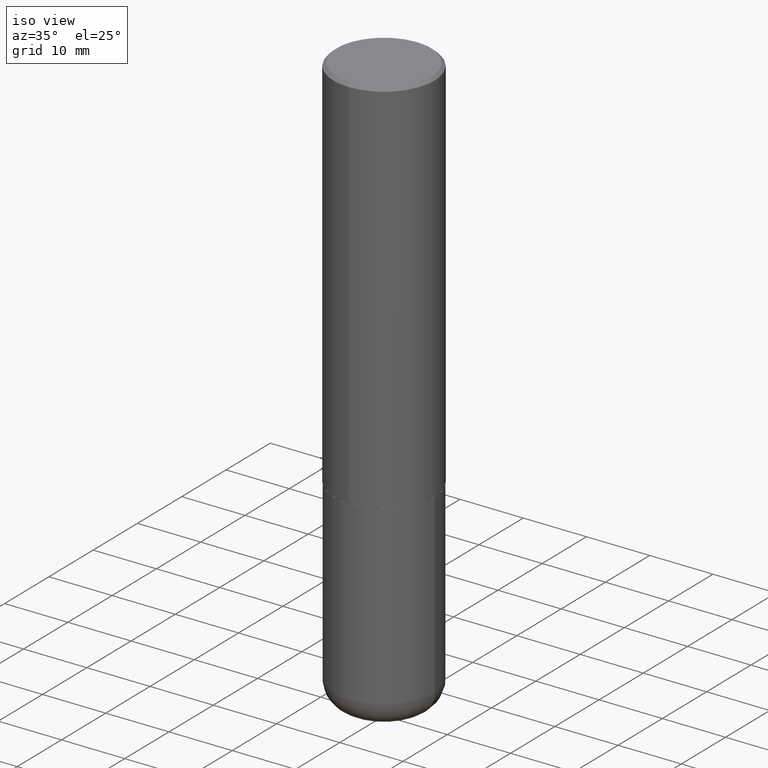
[diagram: clean part render]
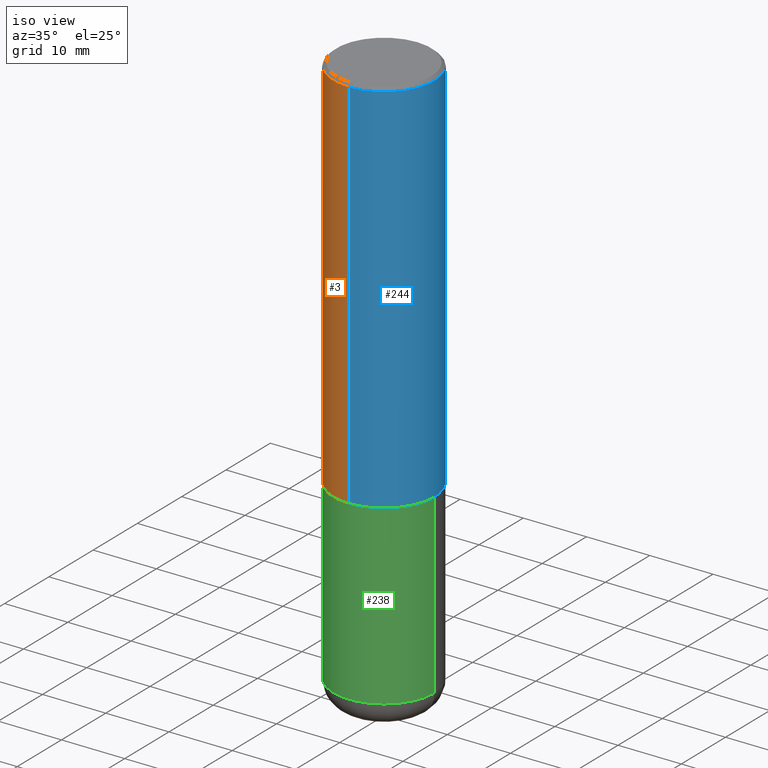
[diagram: same view with three faces highlighted in distinct colors, each labeled with its STEP entity id]
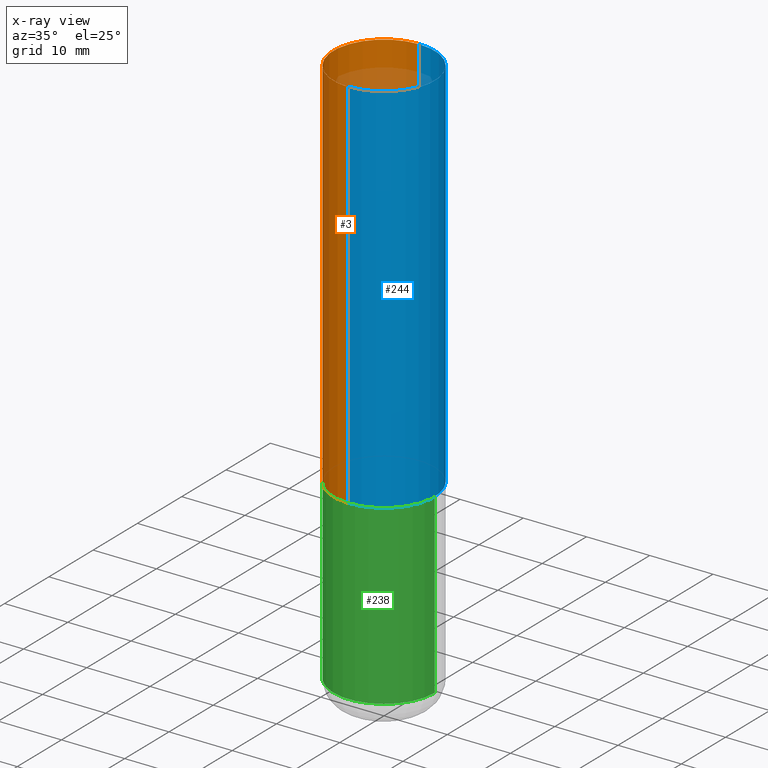
[diagram: x-ray of the same camera — body ghosted, the three highlighted faces saturated]
A machine part, iso view with three faces highlighted in distinct colors.
The next image is the same camera in x-ray (body ghosted, the three faces saturated) — at least one of them is partly hidden behind the body in this view.
Their STEP definitions:

[orange] entity #3 — the highlighted cylindrical surface (partial cylindrical patch) has radius 7.9997 mm, axis along (-0, 0, 1).
#3 = ADVANCED_FACE ( 'NONE', ( #30 ), #95, .T. ) ;
#4 = CARTESIAN_POINT ( 'NONE',  ( -2.199284095337290265E-15, -0.3149500000000001743, 1.098394927063089374E-15 ) ) ;
#17 = DIRECTION ( 'NONE',  ( -2.448233878940557644E-29, 3.487521597279215214E-15, 1.000000000000000000 ) ) ;
#30 = FACE_OUTER_BOUND ( 'NONE', #44, .T. ) ;
#33 = LINE ( 'NONE', #352, #148 ) ;
#35 = CARTESIAN_POINT ( 'NONE',  ( -2.160713844398143363E-15, -0.3149500000000000632, -0.01999999999999900122 ) ) ;
#36 = AXIS2_PLACEMENT_3D ( 'NONE', #273, #17, #212 ) ;
#38 = CARTESIAN_POINT ( 'NONE',  ( 2.237854346276465567E-15, 0.3149499999999920141, -2.361200000000000632 ) ) ;
#43 = DIRECTION ( 'NONE',  ( -2.448233878940557644E-29, 3.487521597279215608E-15, 1.000000000000000000 ) ) ;
#44 = EDGE_LOOP ( 'NONE', ( #220, #139, #379, #299 ) ) ;
#48 = EDGE_CURVE ( 'NONE', #319, #177, #213, .T. ) ;
#95 = CYLINDRICAL_SURFACE ( 'NONE', #373, 0.3149500000000001743 ) ;
#98 = CARTESIAN_POINT ( 'NONE',  ( 0.000000000000000000, 0.000000000000000000, 0.000000000000000000 ) ) ;
#109 = LINE ( 'NONE', #4, #412 ) ;
#139 = ORIENTED_EDGE ( 'NONE', *, *, #360, .T. ) ;
#140 = EDGE_CURVE ( 'NONE', #376, #319, #33, .T. ) ;
#148 = VECTOR ( 'NONE', #43, 39.37007874015748143 ) ;
#170 = DIRECTION ( 'NONE',  ( -2.448233878940557644E-29, 3.487521597279215608E-15, 1.000000000000000000 ) ) ;
#177 = VERTEX_POINT ( 'NONE', #35 ) ;
#184 = EDGE_CURVE ( 'NONE', #241, #177, #109, .T. ) ;
#187 = AXIS2_PLACEMENT_3D ( 'NONE', #216, #404, #307 ) ;
#212 = DIRECTION ( 'NONE',  ( -6.982962677686265922E-15, -1.000000000000000000, 3.483117034309591132E-15 ) ) ;
#213 = CIRCLE ( 'NONE', #36, 0.3149500000000000077 ) ;
#216 = CARTESIAN_POINT ( 'NONE',  ( 5.780769834954442662E-29, -8.234735995495680854E-15, -2.361199999999999299 ) ) ;
#218 = DIRECTION ( 'NONE',  ( -6.982962677686264344E-15, -1.000000000000000000, 3.487521597279214819E-15 ) ) ;
#220 = ORIENTED_EDGE ( 'NONE', *, *, #140, .F. ) ;
#241 = VERTEX_POINT ( 'NONE', #409 ) ;
#247 = CIRCLE ( 'NONE', #187, 0.3149500000000002853 ) ;
#269 = CARTESIAN_POINT ( 'NONE',  ( 2.199284095337289871E-15, 0.3149499999999999522, -0.02000000000000119391 ) ) ;
#273 = CARTESIAN_POINT ( 'NONE',  ( 4.896467757881138829E-31, -6.975043194558463165E-17, -0.02000000000000009756 ) ) ;
#299 = ORIENTED_EDGE ( 'NONE', *, *, #48, .F. ) ;
#307 = DIRECTION ( 'NONE',  ( -6.982962677686265922E-15, -1.000000000000000000, 3.469564049740290009E-15 ) ) ;
#319 = VERTEX_POINT ( 'NONE', #269 ) ;
#340 = DIRECTION ( 'NONE',  ( -2.448233878940557644E-29, 3.487521597279215214E-15, 1.000000000000000000 ) ) ;
#352 = CARTESIAN_POINT ( 'NONE',  ( 2.237854346276435985E-15, 0.3149500000000001743, -1.098394927063089374E-15 ) ) ;
#360 = EDGE_CURVE ( 'NONE', #376, #241, #247, .T. ) ;
#373 = AXIS2_PLACEMENT_3D ( 'NONE', #98, #340, #218 ) ;
#376 = VERTEX_POINT ( 'NONE', #38 ) ;
#379 = ORIENTED_EDGE ( 'NONE', *, *, #184, .T. ) ;
#404 = DIRECTION ( 'NONE',  ( -2.448233878940557644E-29, 3.487521597279215214E-15, 1.000000000000000000 ) ) ;
#409 = CARTESIAN_POINT ( 'NONE',  ( -2.199284095337233467E-15, -0.3149500000000085564, -2.361199999999998411 ) ) ;
#412 = VECTOR ( 'NONE', #170, 39.37007874015748143 ) ;

[blue] entity #244 — the highlighted cylindrical surface (partial cylindrical patch) has radius 7.9997 mm, axis along (-0, 0, 1).
#4 = CARTESIAN_POINT ( 'NONE',  ( -2.199284095337290265E-15, -0.3149500000000001743, 1.098394927063089374E-15 ) ) ;
#23 = FACE_OUTER_BOUND ( 'NONE', #163, .T. ) ;
#33 = LINE ( 'NONE', #352, #148 ) ;
#35 = CARTESIAN_POINT ( 'NONE',  ( -2.160713844398143363E-15, -0.3149500000000000632, -0.01999999999999900122 ) ) ;
#38 = CARTESIAN_POINT ( 'NONE',  ( 2.237854346276465567E-15, 0.3149499999999920141, -2.361200000000000632 ) ) ;
#43 = DIRECTION ( 'NONE',  ( -2.448233878940557644E-29, 3.487521597279215608E-15, 1.000000000000000000 ) ) ;
#45 = DIRECTION ( 'NONE',  ( -2.448233878940557644E-29, 3.487521597279215214E-15, 1.000000000000000000 ) ) ;
#56 = AXIS2_PLACEMENT_3D ( 'NONE', #239, #146, #116 ) ;
#109 = LINE ( 'NONE', #4, #412 ) ;
#116 = DIRECTION ( 'NONE',  ( -6.982962677686264344E-15, -1.000000000000000000, 3.487521597279214819E-15 ) ) ;
#131 = CARTESIAN_POINT ( 'NONE',  ( 4.896467757881138829E-31, -6.975043194558463165E-17, -0.02000000000000009756 ) ) ;
#140 = EDGE_CURVE ( 'NONE', #376, #319, #33, .T. ) ;
#146 = DIRECTION ( 'NONE',  ( -2.448233878940557644E-29, 3.487521597279215214E-15, 1.000000000000000000 ) ) ;
#148 = VECTOR ( 'NONE', #43, 39.37007874015748143 ) ;
#163 = EDGE_LOOP ( 'NONE', ( #197, #217, #210, #310 ) ) ;
#170 = DIRECTION ( 'NONE',  ( -2.448233878940557644E-29, 3.487521597279215608E-15, 1.000000000000000000 ) ) ;
#177 = VERTEX_POINT ( 'NONE', #35 ) ;
#184 = EDGE_CURVE ( 'NONE', #241, #177, #109, .T. ) ;
#197 = ORIENTED_EDGE ( 'NONE', *, *, #397, .T. ) ;
#202 = AXIS2_PLACEMENT_3D ( 'NONE', #131, #45, #281 ) ;
#210 = ORIENTED_EDGE ( 'NONE', *, *, #221, .F. ) ;
#217 = ORIENTED_EDGE ( 'NONE', *, *, #140, .T. ) ;
#221 = EDGE_CURVE ( 'NONE', #177, #319, #341, .T. ) ;
#224 = DIRECTION ( 'NONE',  ( -6.982962677686265922E-15, -1.000000000000000000, 3.469564049740290009E-15 ) ) ;
#239 = CARTESIAN_POINT ( 'NONE',  ( 0.000000000000000000, 0.000000000000000000, 0.000000000000000000 ) ) ;
#241 = VERTEX_POINT ( 'NONE', #409 ) ;
#244 = ADVANCED_FACE ( 'NONE', ( #23 ), #381, .T. ) ;
#250 = DIRECTION ( 'NONE',  ( -2.448233878940557644E-29, 3.487521597279215214E-15, 1.000000000000000000 ) ) ;
#269 = CARTESIAN_POINT ( 'NONE',  ( 2.199284095337289871E-15, 0.3149499999999999522, -0.02000000000000119391 ) ) ;
#281 = DIRECTION ( 'NONE',  ( -6.982962677686265922E-15, -1.000000000000000000, 3.483117034309591132E-15 ) ) ;
#295 = CIRCLE ( 'NONE', #396, 0.3149500000000002853 ) ;
#310 = ORIENTED_EDGE ( 'NONE', *, *, #184, .F. ) ;
#319 = VERTEX_POINT ( 'NONE', #269 ) ;
#341 = CIRCLE ( 'NONE', #202, 0.3149500000000000077 ) ;
#352 = CARTESIAN_POINT ( 'NONE',  ( 2.237854346276435985E-15, 0.3149500000000001743, -1.098394927063089374E-15 ) ) ;
#376 = VERTEX_POINT ( 'NONE', #38 ) ;
#381 = CYLINDRICAL_SURFACE ( 'NONE', #56, 0.3149500000000001743 ) ;
#391 = CARTESIAN_POINT ( 'NONE',  ( 5.780769834954442662E-29, -8.234735995495680854E-15, -2.361199999999999299 ) ) ;
#396 = AXIS2_PLACEMENT_3D ( 'NONE', #391, #250, #224 ) ;
#397 = EDGE_CURVE ( 'NONE', #241, #376, #295, .T. ) ;
#409 = CARTESIAN_POINT ( 'NONE',  ( -2.199284095337233467E-15, -0.3149500000000085564, -2.361199999999998411 ) ) ;
#412 = VECTOR ( 'NONE', #170, 39.37007874015748143 ) ;

[green] entity #238 — the highlighted cylindrical surface (partial cylindrical patch) has radius 7.9997 mm, axis along (-0, 0, 1).
#9 = VERTEX_POINT ( 'NONE', #117 ) ;
#15 = AXIS2_PLACEMENT_3D ( 'NONE', #61, #403, #91 ) ;
#51 = VERTEX_POINT ( 'NONE', #183 ) ;
#52 = EDGE_CURVE ( 'NONE', #51, #207, #123, .T. ) ;
#61 = CARTESIAN_POINT ( 'NONE',  ( 5.776686413970529753E-29, -8.247577218615278049E-15, -2.362199999999999633 ) ) ;
#67 = CARTESIAN_POINT ( 'NONE',  ( 0.3149499999999999522, -1.429552119375937009E-14, -3.464500000000000135 ) ) ;
#71 = DIRECTION ( 'NONE',  ( 1.000000000000000000, -6.982962677686269866E-15, 0.000000000000000000 ) ) ;
#77 = LINE ( 'NONE', #104, #385 ) ;
#91 = DIRECTION ( 'NONE',  ( 1.000000000000000000, -6.982962677686266711E-15, 0.000000000000000000 ) ) ;
#104 = CARTESIAN_POINT ( 'NONE',  ( -0.3149500000000000077, 2.237854346276435590E-15, -1.549218606675782676E-29 ) ) ;
#117 = CARTESIAN_POINT ( 'NONE',  ( -0.3149499999999999522, -9.858382752145642660E-15, -3.464500000000000135 ) ) ;
#118 = ORIENTED_EDGE ( 'NONE', *, *, #199, .T. ) ;
#123 = CIRCLE ( 'NONE', #15, 0.3149500000000000077 ) ;
#137 = CARTESIAN_POINT ( 'NONE',  ( 8.472326679028406000E-29, -1.209623709842207864E-14, -3.464500000000000135 ) ) ;
#144 = ORIENTED_EDGE ( 'NONE', *, *, #52, .F. ) ;
#154 = VERTEX_POINT ( 'NONE', #67 ) ;
#155 = EDGE_CURVE ( 'NONE', #9, #51, #77, .T. ) ;
#181 = AXIS2_PLACEMENT_3D ( 'NONE', #137, #349, #71 ) ;
#183 = CARTESIAN_POINT ( 'NONE',  ( -0.3149500000000000077, -7.934052812242242362E-15, -2.362199999999999633 ) ) ;
#196 = LINE ( 'NONE', #353, #350 ) ;
#199 = EDGE_CURVE ( 'NONE', #9, #154, #325, .T. ) ;
#207 = VERTEX_POINT ( 'NONE', #392 ) ;
#211 = EDGE_CURVE ( 'NONE', #154, #207, #196, .T. ) ;
#238 = ADVANCED_FACE ( 'NONE', ( #410 ), #266, .T. ) ;
#265 = DIRECTION ( 'NONE',  ( -2.445468806185136877E-29, 3.491481338843145188E-15, 1.000000000000000000 ) ) ;
#266 = CYLINDRICAL_SURFACE ( 'NONE', #375, 0.3149500000000000077 ) ;
#271 = CARTESIAN_POINT ( 'NONE',  ( 0.000000000000000000, 0.000000000000000000, 0.000000000000000000 ) ) ;
#282 = DIRECTION ( 'NONE',  ( -2.445468806185136877E-29, 3.491481338843145188E-15, 1.000000000000000000 ) ) ;
#325 = CIRCLE ( 'NONE', #181, 0.3149500000000000077 ) ;
#336 = DIRECTION ( 'NONE',  ( 1.000000000000000000, -6.982962677686266711E-15, 4.876176775795936353E-29 ) ) ;
#349 = DIRECTION ( 'NONE',  ( -2.445468806185136597E-29, 3.491481338843145583E-15, 1.000000000000000000 ) ) ;
#350 = VECTOR ( 'NONE', #282, 39.37007874015748143 ) ;
#353 = CARTESIAN_POINT ( 'NONE',  ( 0.3149500000000000077, -2.199284095337289871E-15, 1.535751875536930130E-29 ) ) ;
#369 = ORIENTED_EDGE ( 'NONE', *, *, #211, .T. ) ;
#375 = AXIS2_PLACEMENT_3D ( 'NONE', #271, #402, #336 ) ;
#385 = VECTOR ( 'NONE', #265, 39.37007874015748143 ) ;
#392 = CARTESIAN_POINT ( 'NONE',  ( 0.3149500000000000077, -1.044686131395256792E-14, -2.362199999999999633 ) ) ;
#401 = EDGE_LOOP ( 'NONE', ( #408, #118, #369, #144 ) ) ;
#402 = DIRECTION ( 'NONE',  ( -2.445468806185136597E-29, 3.491481338843145583E-15, 1.000000000000000000 ) ) ;
#403 = DIRECTION ( 'NONE',  ( -2.445468806185136597E-29, 3.491481338843145583E-15, 1.000000000000000000 ) ) ;
#408 = ORIENTED_EDGE ( 'NONE', *, *, #155, .F. ) ;
#410 = FACE_OUTER_BOUND ( 'NONE', #401, .T. ) ;